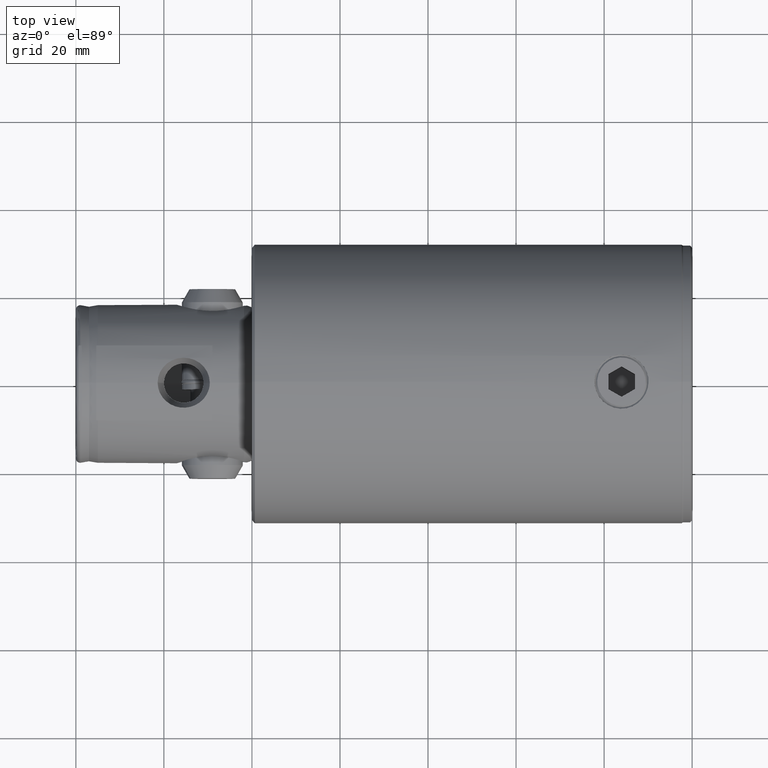
[diagram: clean part render]
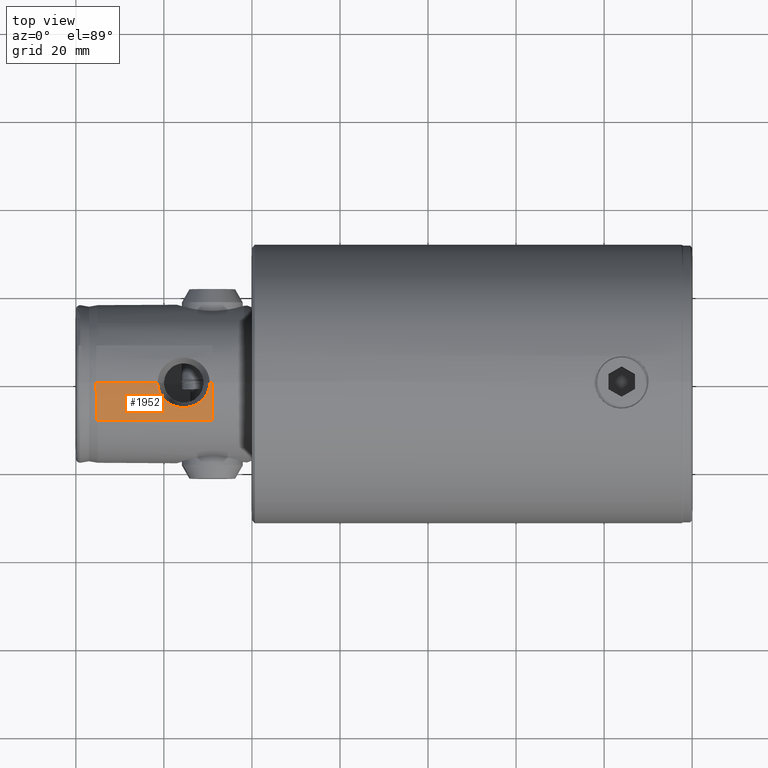
[diagram: same view with one face highlighted and labeled with its STEP entity id]
A machine part, top view. The second image highlights one B-rep face of the part: STEP entity #1952.
In plain terms, the highlighted cylindrical surface (partial cylindrical patch) has radius 18 mm, axis along (-1, 0, 0).
Its self-contained STEP definition (entity closure, byte-faithful):
#4 = CARTESIAN_POINT ( 'NONE',  ( 17.93000000000000300, -0.7336969867331203400, 135.3969897273732700 ) ) ;
#31 = EDGE_CURVE ( 'NONE', #4376, #4041, #3383, .T. ) ;
#40 = DIRECTION ( 'NONE',  ( 0.0000000000000000000, 0.0000000000000000000, 1.000000000000000000 ) ) ;
#135 = CARTESIAN_POINT ( 'NONE',  ( 17.02276909909756200, -5.642926435443732700, 116.2610889918298200 ) ) ;
#218 = CARTESIAN_POINT ( 'NONE',  ( 17.93000000000000000, -0.3807678015923049400, 109.5755447022538100 ) ) ;
#441 = CARTESIAN_POINT ( 'NONE',  ( 17.93000000000000000, 0.0000000000000000000, 109.0000000000000100 ) ) ;
#476 = CARTESIAN_POINT ( 'NONE',  ( 17.23667915915520500, -4.951976693559404700, 118.4244840861761500 ) ) ;
#513 = CARTESIAN_POINT ( 'NONE',  ( 17.10485751956712300, -5.387699804388259600, 113.6192048749130500 ) ) ;
#514 = AXIS2_PLACEMENT_3D ( 'NONE', #3985, #3304, #3269 ) ;
#528 = CARTESIAN_POINT ( 'NONE',  ( 17.01101060373868300, -5.677946532039305400, 115.1103485507406500 ) ) ;
#563 = CARTESIAN_POINT ( 'NONE',  ( 17.34793414796341400, -4.545230044149273700, 111.9280262537177700 ) ) ;
#593 = CARTESIAN_POINT ( 'NONE',  ( 17.40819502064033800, -4.310758721548841000, 111.6243574619866600 ) ) ;
#717 = LINE ( 'NONE', #2049, #3660 ) ;
#728 = DIRECTION ( 'NONE',  ( 1.000000000000000000, 0.0000000000000000000, 0.0000000000000000000 ) ) ;
#865 = VERTEX_POINT ( 'NONE', #899 ) ;
#899 = CARTESIAN_POINT ( 'NONE',  ( 15.79663165262243000, -8.500000000000001800, 109.0000000000000100 ) ) ;
#907 = CARTESIAN_POINT ( 'NONE',  ( 17.18772583722238100, -5.117808006164049000, 112.9048157969038200 ) ) ;
#979 = CARTESIAN_POINT ( 'NONE',  ( 17.88238354433445600, -1.321849239878243500, 109.7347877632896200 ) ) ;
#1023 = VECTOR ( 'NONE', #3931, 1000.000000000000000 ) ;
#1113 = ORIENTED_EDGE ( 'NONE', *, *, #1683, .F. ) ;
#1127 = DIRECTION ( 'NONE',  ( 0.0000000000000000000, 0.0000000000000000000, 1.000000000000000000 ) ) ;
#1142 = CARTESIAN_POINT ( 'NONE',  ( 17.56801920154230200, -3.666809468811002200, 135.3889753161902800 ) ) ;
#1149 = CARTESIAN_POINT ( 'NONE',  ( 15.79663165262242700, -8.500000000000001800, 135.3497655944362600 ) ) ;
#1273 = CARTESIAN_POINT ( 'NONE',  ( 17.74923480858662500, -2.568377032975348600, 120.7985210369572000 ) ) ;
#1291 = CARTESIAN_POINT ( 'NONE',  ( 17.23787966564114500, -4.947812407186916100, 112.5677789311610900 ) ) ;
#1297 = EDGE_CURVE ( 'NONE', #865, #3712, #717, .T. ) ;
#1312 = CARTESIAN_POINT ( 'NONE',  ( 17.40668476716421900, -4.316891495029507200, 119.3682920336103900 ) ) ;
#1343 = CARTESIAN_POINT ( 'NONE',  ( 17.93000000000000000, 0.0000000000000000000, 109.0000000000000100 ) ) ;
#1345 = CARTESIAN_POINT ( 'NONE',  ( 17.91792937914178600, -0.7588399003981348700, 109.6150847257923000 ) ) ;
#1365 = CARTESIAN_POINT ( 'NONE',  ( 17.77139996378757700, -2.390532210608321800, 110.1224240090408800 ) ) ;
#1481 = CARTESIAN_POINT ( 'NONE',  ( 15.79663165262242700, -8.500000000000001800, 135.3497655944362600 ) ) ;
#1493 = B_SPLINE_CURVE_WITH_KNOTS ( 'NONE', 3,
 ( #2302, #4, #3456, #3780, #1142, #4183, #3765, #1481 ),
 .UNSPECIFIED., .F., .F.,
 ( 4, 2, 2, 4 ),
 ( 0.008809857618304307900, 0.01101073208417996400, 0.01321160655005562000, 0.01761335548180693200 ),
 .UNSPECIFIED. ) ;
#1649 = CARTESIAN_POINT ( 'NONE',  ( 17.86766025078081900, -1.507889883341877900, 121.2152746917311700 ) ) ;
#1664 = CARTESIAN_POINT ( 'NONE',  ( 17.81383441636836600, -2.049119080161866600, 121.0288566655565500 ) ) ;
#1682 = CARTESIAN_POINT ( 'NONE',  ( 17.10401422654639300, -5.390384129380687600, 117.3723852474465700 ) ) ;
#1683 = EDGE_CURVE ( 'NONE', #4376, #865, #3428, .T. ) ;
#1709 = CARTESIAN_POINT ( 'NONE',  ( 17.02309695121505600, -5.641940691255038900, 114.7308788247132000 ) ) ;
#1737 = EDGE_LOOP ( 'NONE', ( #1113, #3042, #3979, #3505, #4339, #4682 ) ) ;
#1745 = CYLINDRICAL_SURFACE ( 'NONE', #1780, 18.00000000000000400 ) ;
#1749 = CARTESIAN_POINT ( 'NONE',  ( 17.74795342845030900, -2.558944734121912900, 110.2074447552688700 ) ) ;
#1777 = CARTESIAN_POINT ( 'NONE',  ( 17.67057441298249300, -3.049049394173233300, 110.4980365655630300 ) ) ;
#1780 = AXIS2_PLACEMENT_3D ( 'NONE', #4130, #1127, #728 ) ;
#1952 = ADVANCED_FACE ( 'NONE', ( #3312 ), #1745, .T. ) ;
#1985 = LINE ( 'NONE', #2400, #4697 ) ;
#1991 = EDGE_CURVE ( 'NONE', #4521, #3712, #1493, .T. ) ;
#2049 = CARTESIAN_POINT ( 'NONE',  ( 15.79663165262243000, -8.500000000000001800, 109.0000000000000100 ) ) ;
#2054 = CARTESIAN_POINT ( 'NONE',  ( 17.07085982109774500, -5.494900391214920400, 117.0056182733106700 ) ) ;
#2069 = CARTESIAN_POINT ( 'NONE',  ( 17.34643071653004000, -4.550951305804274800, 119.0639741565742300 ) ) ;
#2186 = VERTEX_POINT ( 'NONE', #3617 ) ;
#2302 = CARTESIAN_POINT ( 'NONE',  ( 17.93000000000000000, -6.588450184314449100E-016, 135.3969897273732700 ) ) ;
#2355 = EDGE_CURVE ( 'NONE', #2186, #4521, #1985, .T. ) ;
#2400 = CARTESIAN_POINT ( 'NONE',  ( 17.93000000000000000, 0.0000000000000000000, 109.0000000000000100 ) ) ;
#2429 = CARTESIAN_POINT ( 'NONE',  ( 17.12324024545284800, -5.328951215541804800, 117.5550032044046600 ) ) ;
#2448 = CARTESIAN_POINT ( 'NONE',  ( 17.18664427869065000, -5.121440522027778100, 118.0873901076837900 ) ) ;
#2467 = CARTESIAN_POINT ( 'NONE',  ( 17.05681643082977300, -5.538366410990046300, 116.8206550192462600 ) ) ;
#2478 = EDGE_CURVE ( 'NONE', #2186, #4041, #2719, .T. ) ;
#2536 = CARTESIAN_POINT ( 'NONE',  ( 17.81422687865005400, -2.045635810882758100, 109.9697676634867200 ) ) ;
#2719 = B_SPLINE_CURVE_WITH_KNOTS ( 'NONE', 3,
 ( #3918, #4750, #3572, #3935, #1649, #4732, #1664, #1273, #3237, #4313, #3947, #1312, #2069, #476, #2448, #2429, #1682, #2054, #2467, #135, #3591, #528, #1709, #4385, #2832, #513, #3217, #907, #1291, #563, #593, #2881, #3302, #1777, #4060, #1749, #1365, #2536, #4800, #4044, #979, #1345, #218, #4003 ),
 .UNSPECIFIED., .F., .F.,
 ( 4, 2, 2, 2, 2, 2, 2, 2, 2, 2, 2, 2, 2, 2, 2, 2, 2, 2, 2, 2, 2, 4 ),
 ( 0.02345951525350441900, 0.02460005239910085000, 0.02517032097189906100, 0.02574058954469727100, 0.02688112669029370900, 0.02802166383589014800, 0.02916220098148658600, 0.03030273812708302700, 0.03087300669988124500, 0.03144327527267946200, 0.03258381241827586200, 0.03372434956387225500, 0.03429461813667045900, 0.03486488670946865500, 0.03600542385506501400, 0.03714596100066137200, 0.03828649814625773000, 0.03885676671905592700, 0.03942703529185412300, 0.03999730386465230600, 0.04056757243745050300, 0.04170810958304688900 ),
 .UNSPECIFIED. ) ;
#2832 = CARTESIAN_POINT ( 'NONE',  ( 17.07152917765901300, -5.492815075268908700, 113.9860989651502900 ) ) ;
#2881 = CARTESIAN_POINT ( 'NONE',  ( 17.52729509362562900, -3.795411350934874600, 111.0763900974562800 ) ) ;
#3042 = ORIENTED_EDGE ( 'NONE', *, *, #31, .T. ) ;
#3114 = DIRECTION ( 'NONE',  ( 0.0000000000000000000, 0.0000000000000000000, 1.000000000000000000 ) ) ;
#3217 = CARTESIAN_POINT ( 'NONE',  ( 17.12415592592711300, -5.325999151340316700, 113.4366862477171100 ) ) ;
#3237 = CARTESIAN_POINT ( 'NONE',  ( 17.69773018954662200, -2.899425015371221100, 120.6091455706049700 ) ) ;
#3269 = DIRECTION ( 'NONE',  ( 1.000000000000000000, 0.0000000000000000000, 0.0000000000000000000 ) ) ;
#3302 = CARTESIAN_POINT ( 'NONE',  ( 17.58668831089902800, -3.512846244069167700, 110.8286489883106200 ) ) ;
#3304 = DIRECTION ( 'NONE',  ( 0.0000000000000000000, 0.0000000000000000000, -1.000000000000000000 ) ) ;
#3312 = FACE_OUTER_BOUND ( 'NONE', #1737, .T. ) ;
#3383 = LINE ( 'NONE', #441, #1023 ) ;
#3428 = CIRCLE ( 'NONE', #514, 18.00000000000000400 ) ;
#3456 = CARTESIAN_POINT ( 'NONE',  ( 17.88531063849982400, -1.466762151048172800, 135.3960002414596600 ) ) ;
#3505 = ORIENTED_EDGE ( 'NONE', *, *, #2355, .T. ) ;
#3572 = CARTESIAN_POINT ( 'NONE',  ( 17.91777255946824700, -0.7615240372031836200, 121.3843887697962300 ) ) ;
#3591 = CARTESIAN_POINT ( 'NONE',  ( 17.01084885131086500, -5.678433109969941700, 115.8818511311066600 ) ) ;
#3617 = CARTESIAN_POINT ( 'NONE',  ( 17.93000000000000300, 1.738219709932127300E-015, 121.4244552977462200 ) ) ;
#3660 = VECTOR ( 'NONE', #3114, 1000.000000000000000 ) ;
#3712 = VERTEX_POINT ( 'NONE', #1149 ) ;
#3724 = CARTESIAN_POINT ( 'NONE',  ( 17.93000000000000000, -6.588450184314449100E-016, 135.3969897273732700 ) ) ;
#3765 = CARTESIAN_POINT ( 'NONE',  ( 16.49943493794887300, -7.188103429114404400, 135.3653192013232500 ) ) ;
#3780 = CARTESIAN_POINT ( 'NONE',  ( 17.70498954502348700, -2.931606727901627800, 135.3920078532877100 ) ) ;
#3918 = CARTESIAN_POINT ( 'NONE',  ( 17.93000000000000300, 1.738219709932127300E-015, 121.4244552977462200 ) ) ;
#3931 = DIRECTION ( 'NONE',  ( 0.0000000000000000000, 0.0000000000000000000, 1.000000000000000000 ) ) ;
#3935 = CARTESIAN_POINT ( 'NONE',  ( 17.88240448966774900, -1.321417105594016700, 121.2652819713110000 ) ) ;
#3947 = CARTESIAN_POINT ( 'NONE',  ( 17.52606198327632800, -3.801140001550318700, 119.9183293420699200 ) ) ;
#3979 = ORIENTED_EDGE ( 'NONE', *, *, #2478, .F. ) ;
#3985 = CARTESIAN_POINT ( 'NONE',  ( -0.07000000000000000700, 0.0000000000000000000, 109.0000000000000100 ) ) ;
#4003 = CARTESIAN_POINT ( 'NONE',  ( 17.93000000000000000, -6.360427706615974000E-023, 109.5755447022538100 ) ) ;
#4041 = VERTEX_POINT ( 'NONE', #4497 ) ;
#4044 = CARTESIAN_POINT ( 'NONE',  ( 17.86765389967651500, -1.507814212218741500, 109.7847512749442100 ) ) ;
#4060 = CARTESIAN_POINT ( 'NONE',  ( 17.69762573677392200, -2.887756604813349200, 110.3949130541523700 ) ) ;
#4130 = CARTESIAN_POINT ( 'NONE',  ( -0.07000000000000000700, 0.0000000000000000000, 109.0000000000000100 ) ) ;
#4183 = CARTESIAN_POINT ( 'NONE',  ( 17.02863228476655500, -5.815292437056434900, 135.3770341109877800 ) ) ;
#4313 = CARTESIAN_POINT ( 'NONE',  ( 17.58560284258597800, -3.518322011009937400, 120.1669146882876900 ) ) ;
#4339 = ORIENTED_EDGE ( 'NONE', *, *, #1991, .T. ) ;
#4376 = VERTEX_POINT ( 'NONE', #1343 ) ;
#4385 = CARTESIAN_POINT ( 'NONE',  ( 17.05739965178543800, -5.536564431562172000, 114.1711255770056300 ) ) ;
#4497 = CARTESIAN_POINT ( 'NONE',  ( 17.93000000000000000, -6.360427706615974000E-023, 109.5755447022538100 ) ) ;
#4521 = VERTEX_POINT ( 'NONE', #3724 ) ;
#4682 = ORIENTED_EDGE ( 'NONE', *, *, #1297, .F. ) ;
#4697 = VECTOR ( 'NONE', #40, 1000.000000000000000 ) ;
#4732 = CARTESIAN_POINT ( 'NONE',  ( 17.83335316917729300, -1.871719122207246500, 121.0969843733504000 ) ) ;
#4750 = CARTESIAN_POINT ( 'NONE',  ( 17.93000000000001000, -0.3833003076840618700, 121.4244552977462600 ) ) ;
#4800 = CARTESIAN_POINT ( 'NONE',  ( 17.83360856914150700, -1.869152568976604900, 109.9021309727795600 ) ) ;